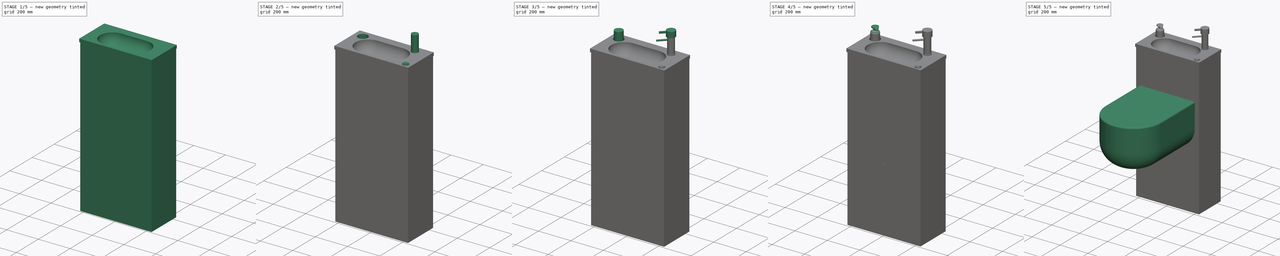
[diagram: build sequence overview — one tinted view per stage of 5, left to right]
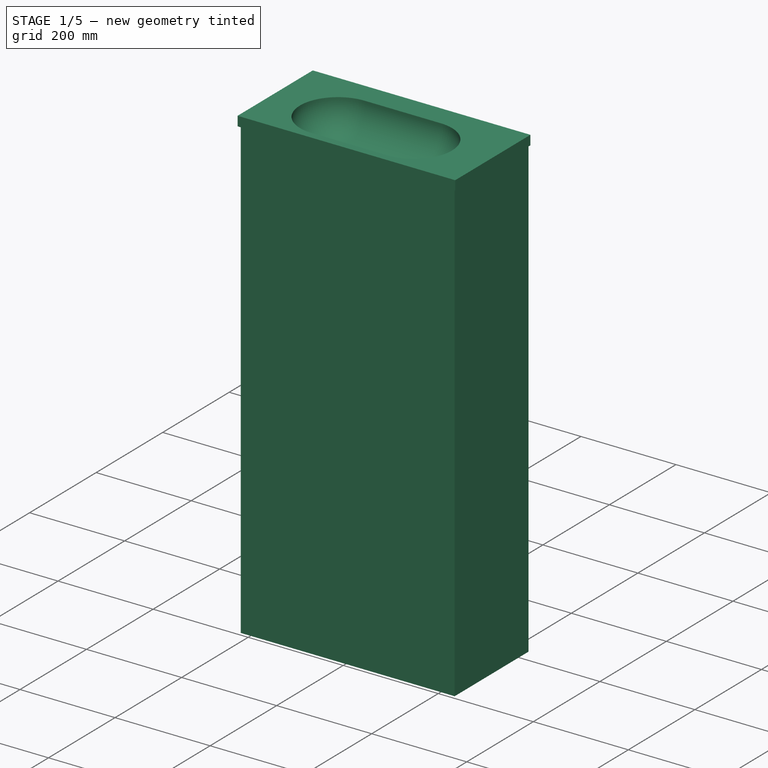
[diagram: stage 1 of 5 — iso view after this stage's code; geometry added in this stage tinted green]
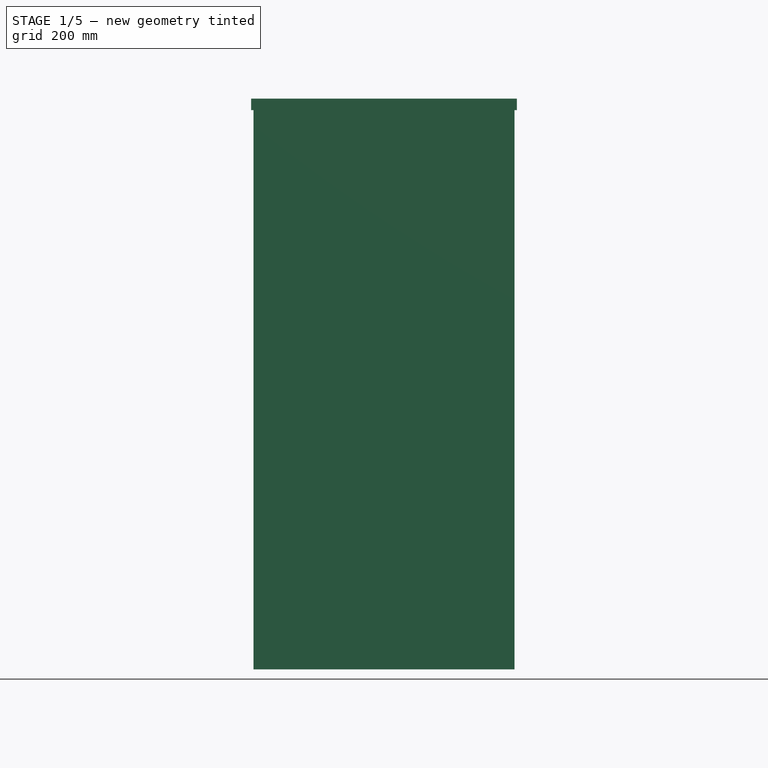
[diagram: stage 1 of 5 — front view after this stage's code; geometry added in this stage tinted green]
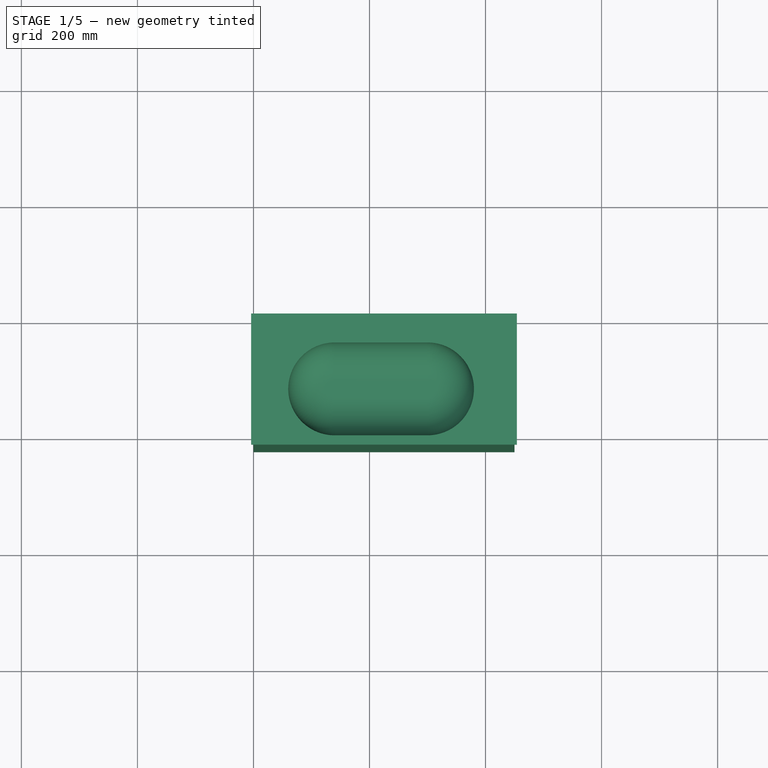
[diagram: stage 1 of 5 — top view after this stage's code; geometry added in this stage tinted green]
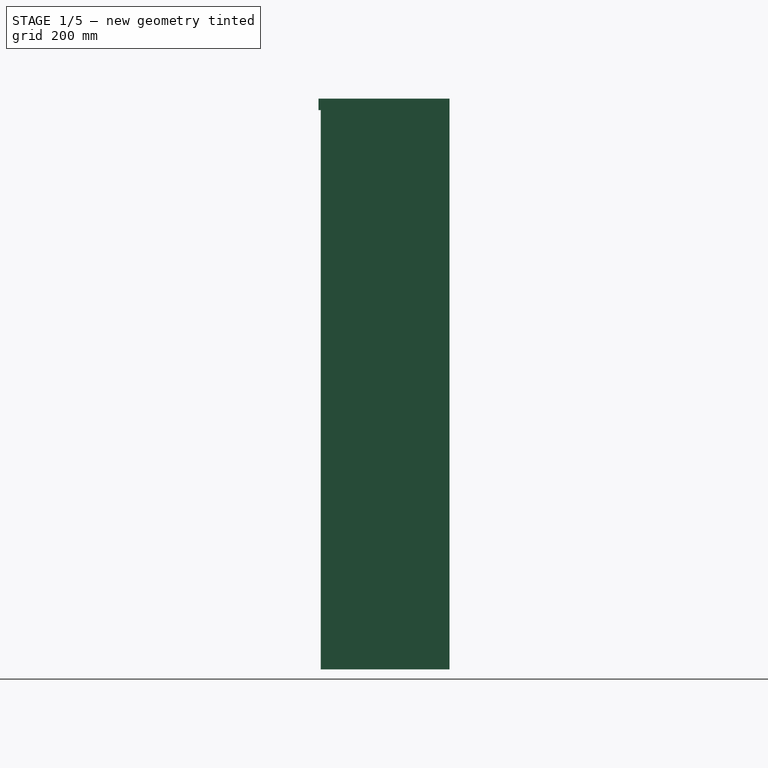
[diagram: stage 1 of 5 — right view after this stage's code; geometry added in this stage tinted green]
FCSTD DOCUMENT  (FreeCAD 0.18R16093 (Git))
Label: Wall-Hung-Toilets
License: All rights reserved
LicenseURL: http://en.wikipedia.org/wiki/All_rights_reserved
objects: Sketcher::SketchObject×18, PartDesign::Pad×15, PartDesign::Fillet×4, PartDesign::Pocket×3, PartDesign::Body×1
note: 59 computed .brp shape members not serialized (recipe doc carries the construction recipe); baked Part::Feature solids carry a one-line shape summary decoded from their .brp

FEATURE [Sketcher::SketchObject] Sketch
  MapMode = 5
  Support = -> [XY_Plane]
  sketch-geometry (4):
    g0: LineSegment StartX=0 StartY=0 StartZ=0 EndX=450 EndY=0 EndZ=0
    g1: LineSegment StartX=450 StartY=0 StartZ=0 EndX=450 EndY=-222 EndZ=0
    g2: LineSegment StartX=450 StartY=-222 StartZ=0 EndX=0 EndY=-222 EndZ=0
    g3: LineSegment StartX=0 StartY=-222 StartZ=0 EndX=0 EndY=0 EndZ=0
  constraints (11):
    c: Coincident(g0,g1)
    c: Coincident(g1,g2)
    c: Coincident(g2,g3)
    c: Coincident(g3,g0)
    c: Horizontal(g2)
    c: Vertical(g1)
    c: DistanceX(g0,g0) = 450
    c: DistanceY(g2,g0) = 222
    c: Vertical(g3)
    c: Coincident(g0,g-1)
    c: Horizontal(g0)
FEATURE [PartDesign::Pad] Pad
  Length = 964
  Length2 = 100
  Profile = -> Sketch
  Type = 0
FEATURE [Sketcher::SketchObject] Sketch001
  MapMode = 5
  Placement = pos=(0,0,964) rot=(0,0,1;0rad)
  Support = -> [Pad]
  sketch-geometry (4):
    g0: LineSegment StartX=-4 StartY=0 StartZ=0 EndX=454 EndY=0 EndZ=0
    g1: LineSegment StartX=454 StartY=0 StartZ=0 EndX=454 EndY=-226 EndZ=0
    g2: LineSegment StartX=454 StartY=-226 StartZ=0 EndX=-4 EndY=-226 EndZ=0
    g3: LineSegment StartX=-4 StartY=-226 StartZ=0 EndX=-4 EndY=0 EndZ=0
  constraints (12):
    c: Coincident(g0,g1)
    c: Coincident(g1,g2)
    c: Coincident(g2,g3)
    c: Coincident(g3,g0)
    c: Horizontal(g0)
    c: Horizontal(g2)
    c: Vertical(g1)
    c: Vertical(g3)
    c: DistanceY(g2,g-1) = 226
    c: PointOnObject(g0,g-1)
    c: DistanceX(g2,g1) = 458
    c: DistanceX(g0,g-1) = 4
FEATURE [PartDesign::Pad] Pad001
  BaseFeature = -> Pad
  Length = 20
  Length2 = 100
  Profile = -> Sketch001
  Type = 0
FEATURE [Sketcher::SketchObject] Sketch002
  MapMode = 5
  Placement = pos=(0,0,984) rot=(0,0,1;0rad)
  Support = -> [Pad001]
  sketch-geometry (4):
    g0: ArcOfCircle CenterX=140 CenterY=-130 CenterZ=0 NormalX=0 NormalY=0 NormalZ=1 AngleXU=0 Radius=80 StartAngle=1.5708 EndAngle=4.71239
    g1: ArcOfCircle CenterX=300 CenterY=-130 CenterZ=0 NormalX=0 NormalY=0 NormalZ=1 AngleXU=0 Radius=80 StartAngle=4.71239 EndAngle=7.85398
    g2: LineSegment StartX=140 StartY=-210 StartZ=0 EndX=300 EndY=-210 EndZ=0
    g3: LineSegment StartX=140 StartY=-50 StartZ=0 EndX=300 EndY=-50 EndZ=0
  constraints (10):
    c: Tangent(g0,g3) = 1.5708
    c: Tangent(g0,g2) = -1.5708
    c: Tangent(g2,g1) = -1.5708
    c: Tangent(g3,g1) = 1.5708
    c: Horizontal(g2)
    c: Equal(g0,g1)
    c: Radius(g1) = 80
    c: DistanceX(g0,g1) = 160
    c: DistanceX(g-1,g0) = 140
    c: DistanceY(g0,g-1) = 130
FEATURE [PartDesign::Pocket] Pocket
  BaseFeature = -> Pad001
  Length = 70
  Length2 = 100
  Profile = -> Sketch002
  Type = 0
FEATURE [PartDesign::Fillet] Fillet
  Base = -> Pocket [Edge32]
  BaseFeature = -> Pocket
  Radius = 65
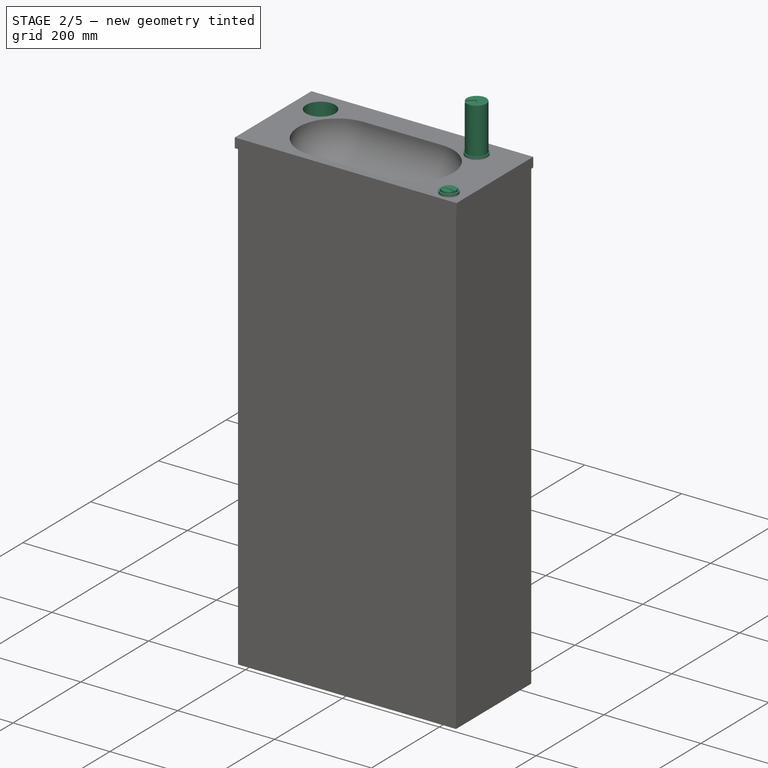
[diagram: stage 2 of 5 — iso view after this stage's code; geometry added in this stage tinted green]
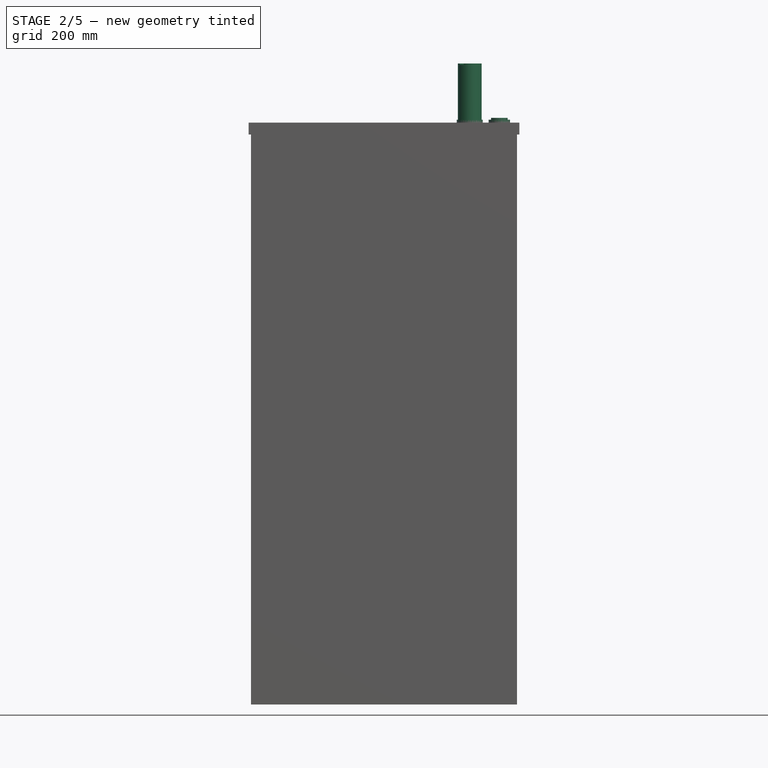
[diagram: stage 2 of 5 — front view after this stage's code; geometry added in this stage tinted green]
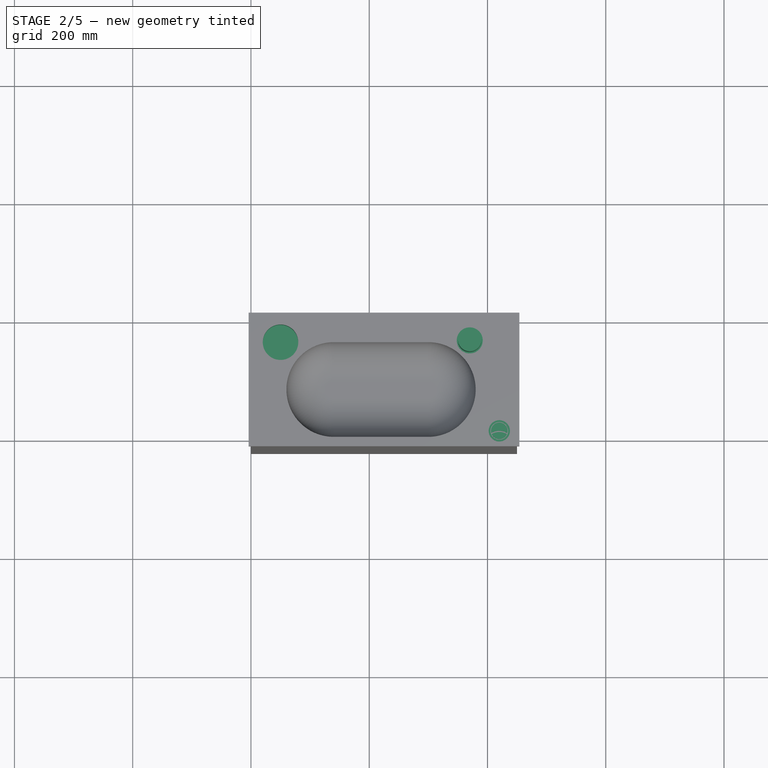
[diagram: stage 2 of 5 — top view after this stage's code; geometry added in this stage tinted green]
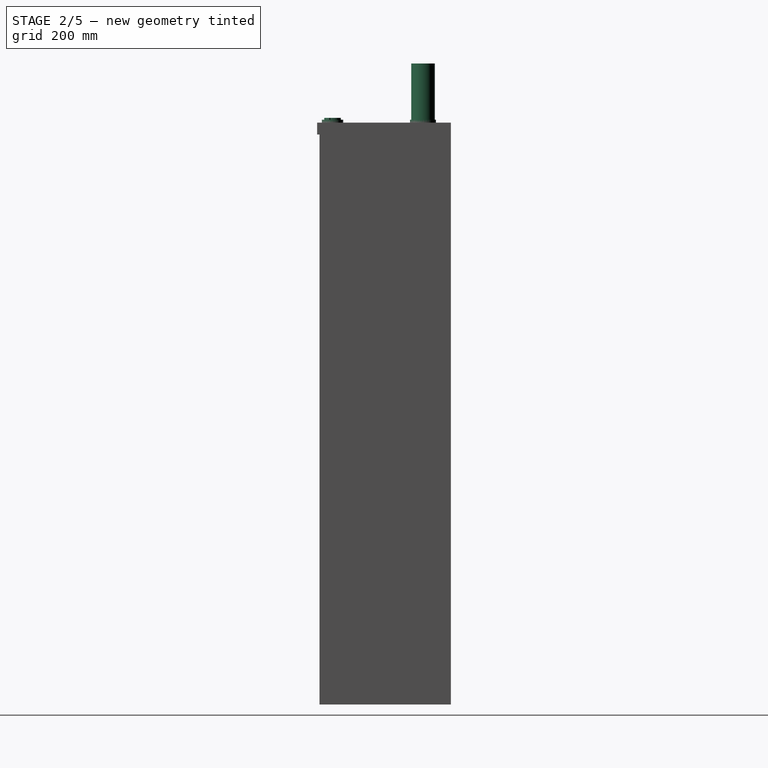
[diagram: stage 2 of 5 — right view after this stage's code; geometry added in this stage tinted green]
FEATURE [Sketcher::SketchObject] Sketch003
  MapMode = 5
  Placement = pos=(0,0,984) rot=(0,0,1;0rad)
  Support = -> [Fillet]
  sketch-geometry (1):
    g0: Circle CenterX=50 CenterY=-50 CenterZ=0 NormalX=0 NormalY=0 NormalZ=1 AngleXU=0 Radius=30
  constraints (3):
    c: Radius(g0) = 30
    c: DistanceX(g-1,g0) = 50
    c: DistanceY(g0,g-1) = 50
FEATURE [PartDesign::Pocket] Pocket001
  BaseFeature = -> Fillet
  Length = 50
  Length2 = 100
  Profile = -> Sketch003
  Type = 0
FEATURE [Sketcher::SketchObject] Sketch004
  MapMode = 5
  Placement = pos=(0,0,984) rot=(0,0,1;0rad)
  Support = -> [Pocket001]
  sketch-geometry (4):
    g0: Circle CenterX=370 CenterY=-47 CenterZ=0 NormalX=0 NormalY=0 NormalZ=1 AngleXU=0 Radius=20
    g1: Circle CenterX=420 CenterY=-200 CenterZ=0 NormalX=0 NormalY=0 NormalZ=1 AngleXU=0 Radius=15
    g2: Circle CenterX=420 CenterY=-200 CenterZ=0 NormalX=0 NormalY=0 NormalZ=1 AngleXU=0 Radius=18
    g3: Circle CenterX=370 CenterY=-47 CenterZ=0 NormalX=0 NormalY=0 NormalZ=1 AngleXU=0 Radius=22
  constraints (10):
    c: Coincident(g2,g1)
    c: Coincident(g3,g0)
    c: Radius(g3) = 22
    c: Radius(g0) = 20
    c: DistanceX(g-1,g0) = 370
    c: DistanceY(g0,g-1) = 47
    c: Radius(g1) = 15
    c: Radius(g2) = 18
    c: DistanceX(g-1,g1) = 420
    c: DistanceY(g1,g-1) = 200
FEATURE [PartDesign::Pad] Pad002
  BaseFeature = -> Pocket001
  Length = 5
  Length2 = 100
  Profile = -> Sketch004
  Type = 0
FEATURE [Sketcher::SketchObject] Sketch005
  MapMode = 5
  Placement = pos=(0,0,984) rot=(0,0,1;0rad)
  Support = -> [Pad002]
  sketch-geometry (5):
    g0: ArcOfCircle CenterX=420 CenterY=-200 CenterZ=0 NormalX=0 NormalY=0 NormalZ=1 AngleXU=0 Radius=14 StartAngle=6.01059 EndAngle=9.69737
    g1: ArcOfCircle CenterX=420 CenterY=-200 CenterZ=0 NormalX=0 NormalY=0 NormalZ=1 AngleXU=0 Radius=14 StartAngle=3.53979 EndAngle=5.88499
    g2: ArcOfCircle CenterX=420 CenterY=-226 CenterZ=0 NormalX=0 NormalY=0 NormalZ=1 AngleXU=0 Radius=26 StartAngle=1.02561 EndAngle=2.11598
    g3: LineSegment [constr] StartX=420 StartY=-127.444 StartZ=0 EndX=420 EndY=-266.253 EndZ=0
    g4: ArcOfCircle CenterX=420 CenterY=-228 CenterZ=0 NormalX=0 NormalY=0 NormalZ=1 AngleXU=0 Radius=26 StartAngle=1.05143 EndAngle=2.09017
  constraints (17):
    c: Coincident(g1,g0)
    c: DistanceX(g-1,g0) = 420
    c: DistanceY(g0,g-1) = 200
    c: Radius(g0) = 14
    c: Equal(g0,g1)
    c: Coincident(g2,g0)
    c: Vertical(g3)
    c: PointOnObject(g0,g3)
    c: PointOnObject(g2,g3)
    c: Coincident(g2,g0)
    c: PointOnObject(g4,g3)
    c: Coincident(g4,g1)
    c: Coincident(g4,g1)
    c: Radius(g4) = 26
    c: Equal(g2,g4)
    c: DistanceY(g4,g2) = 2
    c: DistanceY(g2,g0) = 26
FEATURE [PartDesign::Pad] Pad003
  BaseFeature = -> Pad002
  Length = 8
  Length2 = 100
  Profile = -> Sketch005
  Type = 0
FEATURE [Sketcher::SketchObject] Sketch006
  MapMode = 5
  Placement = pos=(0,0,984) rot=(0,0,1;0rad)
  Support = -> [Pad003]
  sketch-geometry (1):
    g0: Circle CenterX=370 CenterY=-47 CenterZ=0 NormalX=0 NormalY=0 NormalZ=1 AngleXU=0 Radius=20
  constraints (3):
    c: DistanceX(g-1,g0) = 370
    c: DistanceY(g0,g-1) = 47
    c: Radius(g0) = 20
FEATURE [PartDesign::Pad] Pad004
  BaseFeature = -> Pad003
  Length = 100
  Length2 = 100
  Profile = -> Sketch006
  Type = 0
FEATURE [Sketcher::SketchObject] Sketch007
  MapMode = 5
  Placement = pos=(0,0,1084) rot=(0,0,1;0rad)
  Support = -> [Pad004]
  sketch-geometry (8):
    g0: LineSegment [constr] StartX=294.657 StartY=-85.0668 StartZ=0 EndX=294.657 EndY=-85.0668 EndZ=0
    g1: GeomPoint X=370 Y=-47 Z=0
    g2: LineSegment [constr] StartX=370 StartY=25.2941 StartZ=0 EndX=370 EndY=-145.323 EndZ=0
    g3: LineSegment [constr] StartX=409.713 StartY=-7.28674 StartZ=0 EndX=309.204 EndY=-107.796 EndZ=0
    g4: LineSegment StartX=348.787 StartY=-61.1421 StartZ=0 EndX=366.464 EndY=-43.4645 EndZ=0
    g5: LineSegment StartX=355.858 StartY=-68.2132 StartZ=0 EndX=373.536 EndY=-50.5355 EndZ=0
    g6: LineSegment StartX=348.787 StartY=-61.1421 StartZ=0 EndX=355.858 EndY=-68.2132 EndZ=0
    g7: LineSegment StartX=366.464 StartY=-43.4645 StartZ=0 EndX=373.536 EndY=-50.5355 EndZ=0
  constraints (18):
    c: DistanceX(g-1,g1) = 370
    c: DistanceY(g1,g-1) = 47
    c: Vertical(g2)
    c: PointOnObject(g1,g2)
    c: PointOnObject(g1,g3)
    c: Angle(g3,g2) = 0.785398
    c: Parallel(g4,g3)
    c: Coincident(g6,g4)
    c: Coincident(g6,g5)
    c: Perpendicular(g4,g6)
    c: Coincident(g7,g4)
    c: Coincident(g7,g5)
    c: Perpendicular(g7,g4)
    c: Equal(g6,g7)
    c: PointOnObject(g1,g7)
    c: Distance(g4,g1) = 5
    c: Distance(g5,g5) = 25
    c: Distance(g4,g5) = 10
FEATURE [PartDesign::Pocket] Pocket002
  BaseFeature = -> Pad004
  Length = 2
  Length2 = 100
  Profile = -> Sketch007
  Type = 0
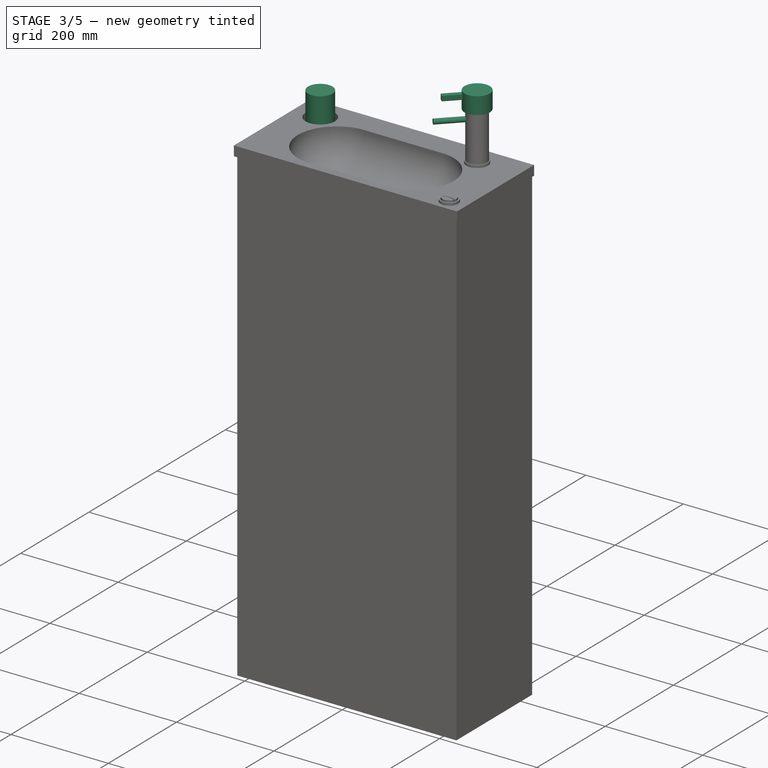
[diagram: stage 3 of 5 — iso view after this stage's code; geometry added in this stage tinted green]
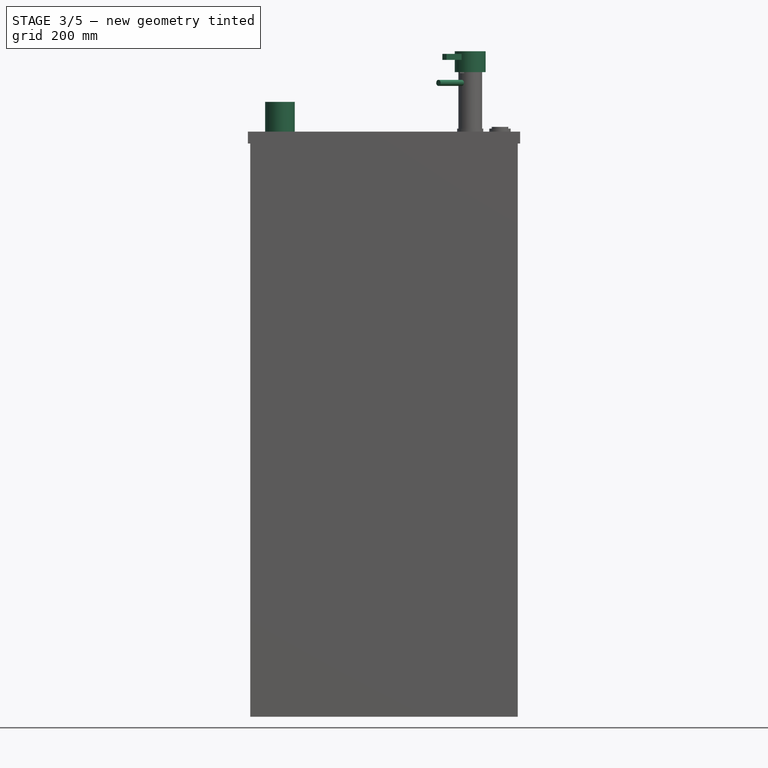
[diagram: stage 3 of 5 — front view after this stage's code; geometry added in this stage tinted green]
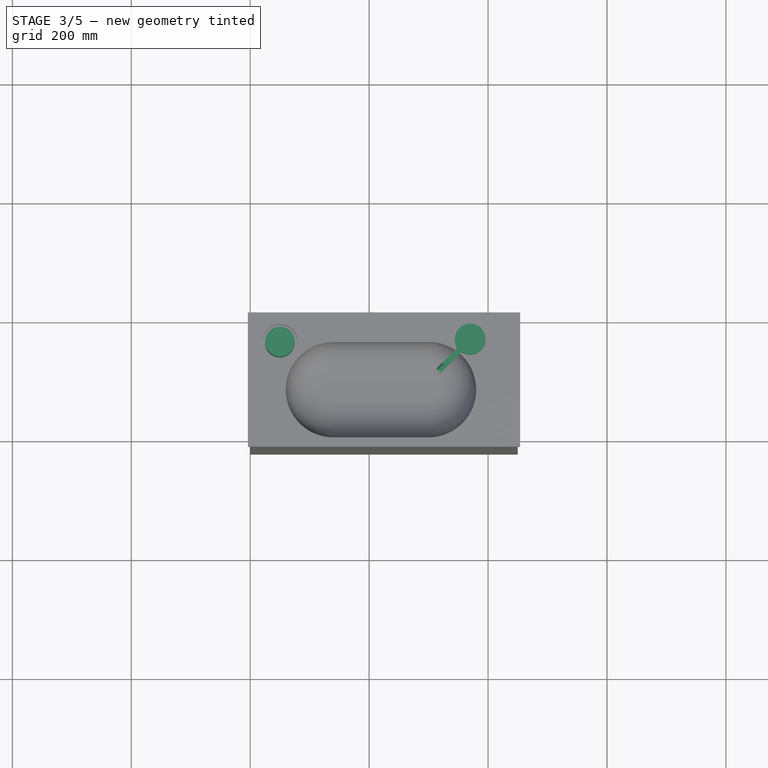
[diagram: stage 3 of 5 — top view after this stage's code; geometry added in this stage tinted green]
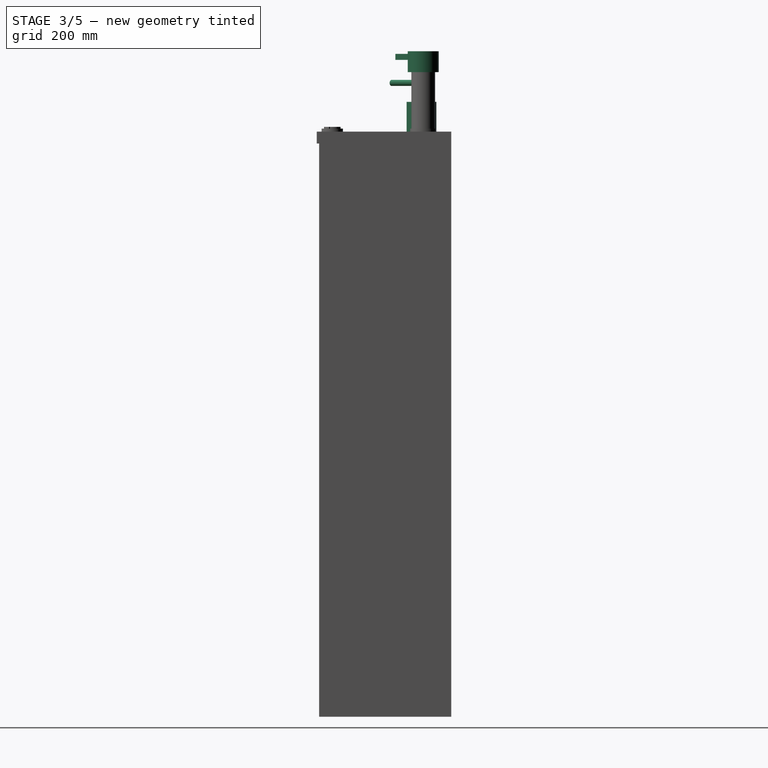
[diagram: stage 3 of 5 — right view after this stage's code; geometry added in this stage tinted green]
FEATURE [Sketcher::SketchObject] Sketch008
  MapMode = 5
  Placement = pos=(204.964,-204.964,0) rot=(0.862856,0.357407,0.357407;1.71777rad)
  Support = -> [Pocket002]
  sketch-geometry (6):
    g0: LineSegment StartX=227.081 StartY=1080.06 StartZ=0 EndX=227.081 EndY=1114.66 EndZ=0
    g1: LineSegment StartX=227.081 StartY=1114.66 StartZ=0 EndX=167.081 EndY=1114.66 EndZ=0
    g2: LineSegment StartX=167.081 StartY=1114.66 StartZ=0 EndX=167.081 EndY=1104.66 EndZ=0
    g3: LineSegment StartX=167.081 StartY=1104.66 StartZ=0 EndX=223.137 EndY=1104.66 EndZ=0
    g4: LineSegment StartX=223.137 StartY=1104.66 StartZ=0 EndX=223.137 EndY=1079.5 EndZ=0
    g5: LineSegment StartX=223.137 StartY=1079.5 StartZ=0 EndX=227.081 EndY=1080.06 EndZ=0
  constraints (13):
    c: Vertical(g0)
    c: Coincident(g0,g1)
    c: Coincident(g1,g2)
    c: Vertical(g2)
    c: Coincident(g2,g3)
    c: Horizontal(g3)
    c: Coincident(g3,g4)
    c: Vertical(g4)
    c: Coincident(g4,g5)
    c: Coincident(g5,g0)
    c: Horizontal(g1)
    c: DistanceY(g2,g1) = 10
    c: DistanceX(g1,g0) = 60
FEATURE [PartDesign::Pad] Pad005
  BaseFeature = -> Pocket002
  Length = 10
  Length2 = 100
  Profile = -> Sketch008
  Type = 0
FEATURE [Sketcher::SketchObject] Sketch009
  MapMode = 5
  Placement = pos=(157.782,157.782,0) rot=(0.862856,-0.357407,-0.357407;1.71777rad)
  Support = -> [Pad005]
  sketch-geometry (1):
    g0: Circle CenterX=294.464 CenterY=1065.9 CenterZ=0 NormalX=0 NormalY=0 NormalZ=1 AngleXU=0 Radius=5.13798
FEATURE [PartDesign::Pad] Pad006
  BaseFeature = -> Pad005
  Length = 70
  Length2 = 100
  Profile = -> Sketch009
  Type = 0
FEATURE [Sketcher::SketchObject] Sketch010
  MapMode = 5
  Placement = pos=(0,0,1084) rot=(0,0,1;0rad)
  Support = -> [Pad006]
  sketch-geometry (1):
    g0: Circle CenterX=370 CenterY=-47 CenterZ=0 NormalX=0 NormalY=0 NormalZ=1 AngleXU=0 Radius=26
  constraints (3):
    c: DistanceX(g-1,g0) = 370
    c: DistanceY(g0,g-1) = 47
    c: Radius(g0) = 26
FEATURE [PartDesign::Pad] Pad007
  BaseFeature = -> Pad006
  Length = 35
  Length2 = 100
  Profile = -> Sketch010
  Type = 0
FEATURE [Sketcher::SketchObject] Sketch011
  MapMode = 5
  Placement = pos=(0,0,934) rot=(0,0,1;0rad)
  Support = -> [Pad007]
  sketch-geometry (1):
    g0: Circle CenterX=50 CenterY=-50 CenterZ=0 NormalX=0 NormalY=0 NormalZ=1 AngleXU=0 Radius=25
  constraints (3):
    c: DistanceX(g-1,g0) = 50
    c: DistanceY(g0,g-1) = 50
    c: Radius(g0) = 25
FEATURE [PartDesign::Pad] Pad008
  BaseFeature = -> Pad007
  Length = 100
  Length2 = 100
  Profile = -> Sketch011
  Type = 0
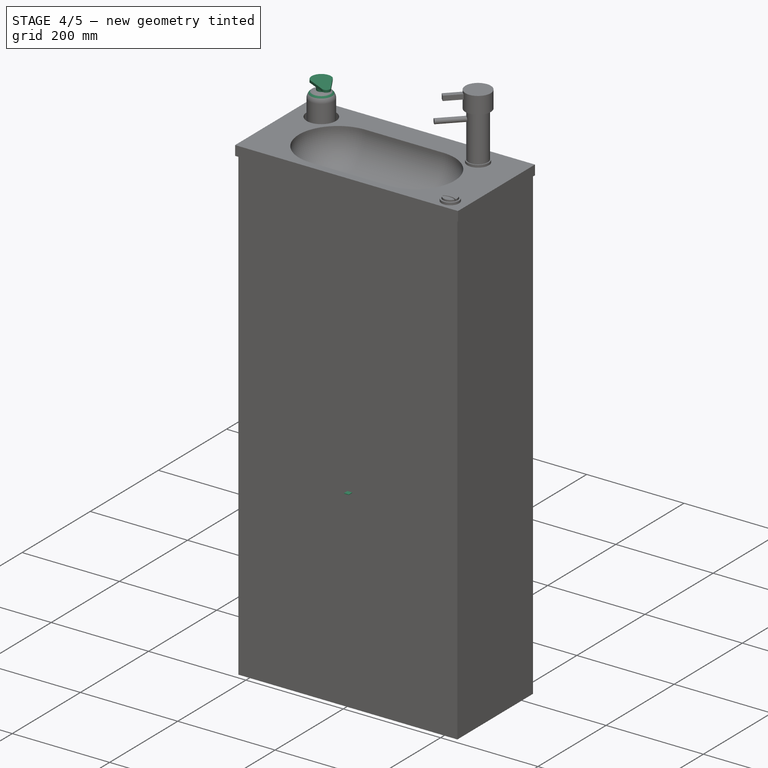
[diagram: stage 4 of 5 — iso view after this stage's code; geometry added in this stage tinted green]
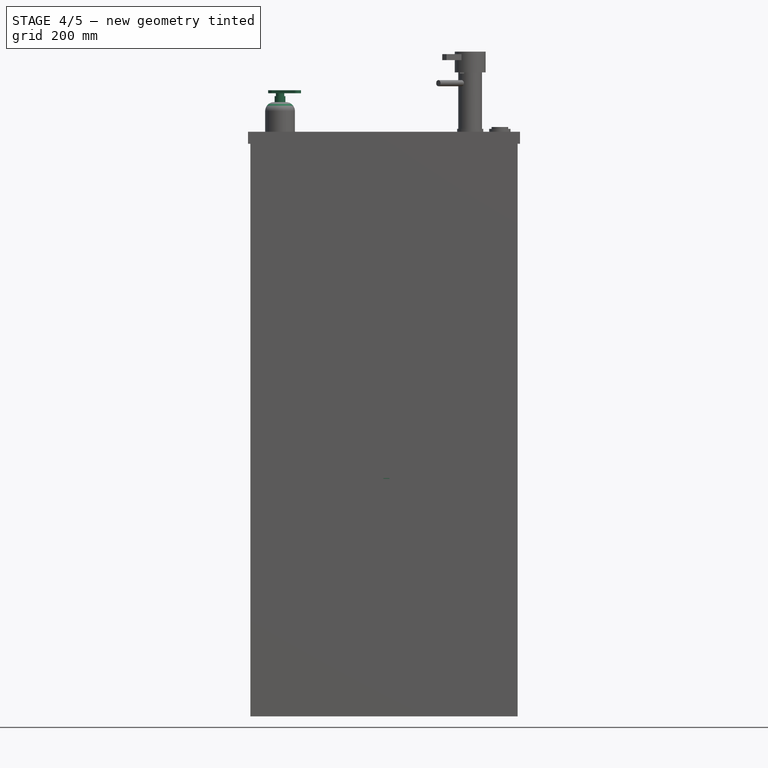
[diagram: stage 4 of 5 — front view after this stage's code; geometry added in this stage tinted green]
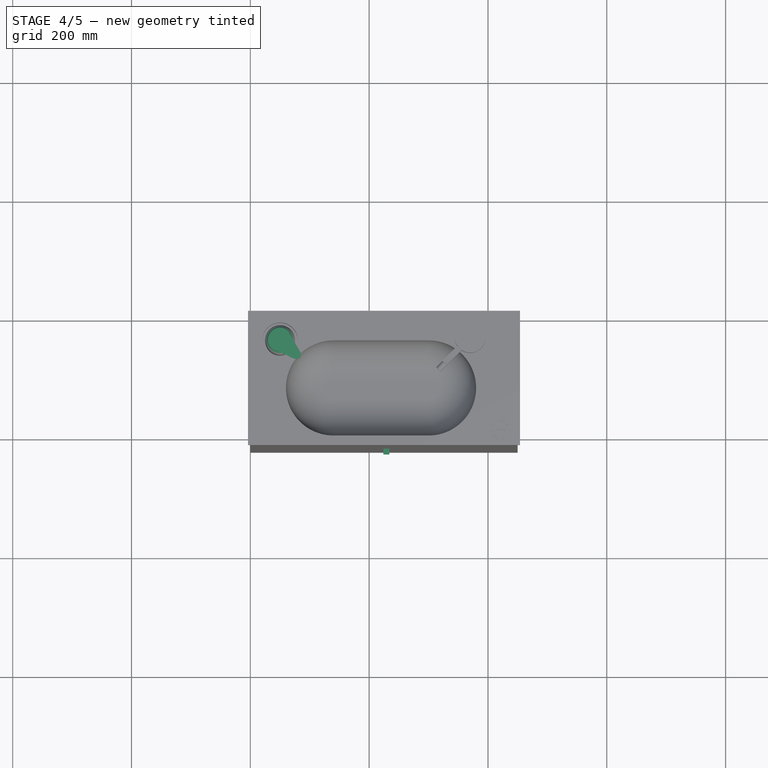
[diagram: stage 4 of 5 — top view after this stage's code; geometry added in this stage tinted green]
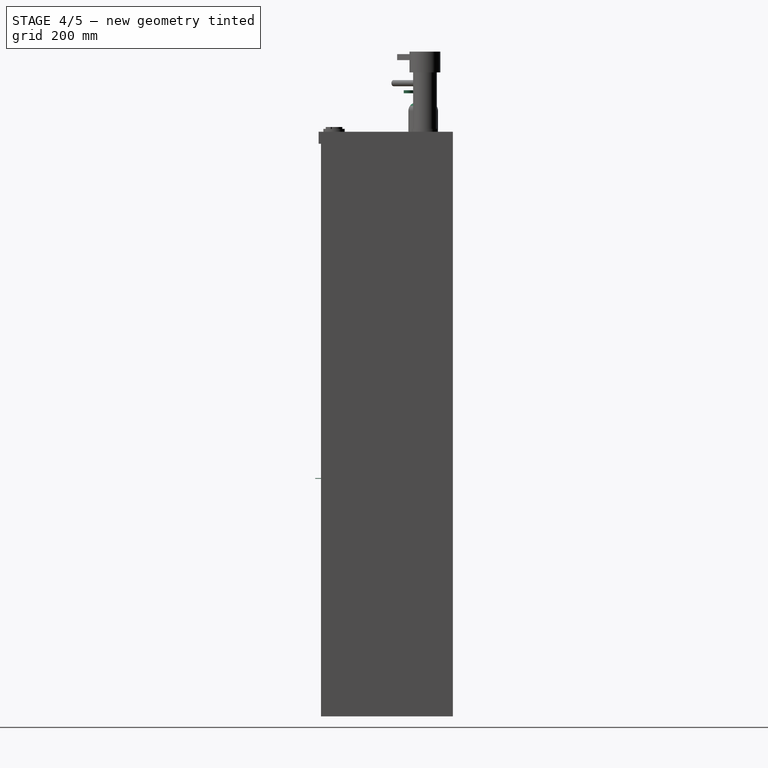
[diagram: stage 4 of 5 — right view after this stage's code; geometry added in this stage tinted green]
FEATURE [PartDesign::Fillet] Fillet001
  Base = -> Pad008 [Edge66]
  BaseFeature = -> Pad008
  Radius = 15
FEATURE [Sketcher::SketchObject] Sketch012
  MapMode = 5
  Placement = pos=(0,0,1034) rot=(0,0,1;0rad)
  Support = -> [Fillet001]
  sketch-geometry (1):
    g0: Circle CenterX=50 CenterY=-50 CenterZ=0 NormalX=0 NormalY=0 NormalZ=1 AngleXU=0 Radius=9
  constraints (3):
    c: DistanceX(g-1,g0) = 50
    c: DistanceY(g0,g-1) = 50
    c: Radius(g0) = 9
FEATURE [PartDesign::Pad] Pad009
  BaseFeature = -> Fillet001
  Length = 10
  Length2 = 100
  Profile = -> Sketch012
  Type = 0
FEATURE [Sketcher::SketchObject] Sketch013
  MapMode = 5
  Placement = pos=(0,0,1044) rot=(0,0,1;0rad)
  Support = -> [Pad009]
  sketch-geometry (1):
    g0: Circle CenterX=50 CenterY=-50 CenterZ=0 NormalX=0 NormalY=0 NormalZ=1 AngleXU=0 Radius=7
  constraints (3):
    c: DistanceX(g-1,g0) = 50
    c: DistanceY(g0,g-1) = 50
    c: Radius(g0) = 7
FEATURE [PartDesign::Pad] Pad010
  BaseFeature = -> Pad009
  Length = 5
  Length2 = 100
  Profile = -> Sketch013
  Type = 0
FEATURE [Sketcher::SketchObject] Sketch014
  MapMode = 5
  Placement = pos=(0,0,1049) rot=(0,0,1;0rad)
  Support = -> [Pad010]
  sketch-geometry (4):
    g0: ArcOfCircle CenterX=50 CenterY=-50 CenterZ=0 NormalX=0 NormalY=0 NormalZ=1 AngleXU=0 Radius=20 StartAngle=0.875795 EndAngle=3.92721
    g1: ArcOfCircle CenterX=77.2892 CenterY=-74.705 CenterZ=0 NormalX=0 NormalY=0 NormalZ=1 AngleXU=0 Radius=8 StartAngle=4.40291 EndAngle=6.67131
    g2: LineSegment StartX=35.8609 StartY=-64.1452 StartZ=0 EndX=74.8527 EndY=-82.3249 EndZ=0
    g3: LineSegment StartX=62.8077 StartY=-34.6389 StartZ=0 EndX=84.6942 EndY=-71.6774 EndZ=0
  constraints (9):
    c: DistanceX(g-1,g0) = 50
    c: DistanceY(g0,g-1) = 50
    c: Radius(g0) = 20
    c: Coincident(g2,g0)
    c: Coincident(g2,g1)
    c: Coincident(g3,g0)
    c: Coincident(g3,g1)
    c: Equal(g2,g3)
    c: Radius(g1) = 8
FEATURE [PartDesign::Pad] Pad011
  BaseFeature = -> Pad010
  Length = 5
  Length2 = 100
  Profile = -> Sketch014
  Type = 0
FEATURE [Sketcher::SketchObject] Sketch015
  MapMode = 5
  Placement = pos=(0,-222,0) rot=(1,0,0;1.5708rad)
  Support = -> [Pad011]
  sketch-geometry (4):
    g0: LineSegment StartX=224 StartY=400 StartZ=0 EndX=234 EndY=400 EndZ=0
    g1: LineSegment StartX=234 StartY=400 StartZ=0 EndX=234 EndY=401 EndZ=0
    g2: LineSegment StartX=234 StartY=401 StartZ=0 EndX=224 EndY=401 EndZ=0
    g3: LineSegment StartX=224 StartY=401 StartZ=0 EndX=224 EndY=400 EndZ=0
  constraints (12):
    c: Coincident(g0,g1)
    c: Coincident(g1,g2)
    c: Coincident(g2,g3)
    c: Coincident(g3,g0)
    c: Horizontal(g0)
    c: Horizontal(g2)
    c: Vertical(g1)
    c: Vertical(g3)
    c: DistanceY(g-1,g0) = 400
    c: DistanceX(g2,g1) = 10
    c: DistanceX(g-1,g2) = 224
    c: DistanceY(g0,g1) = 1
FEATURE [PartDesign::Pad] Pad012
  BaseFeature = -> Pad011
  Length = 10
  Length2 = 100
  Profile = -> Sketch015
  Type = 0
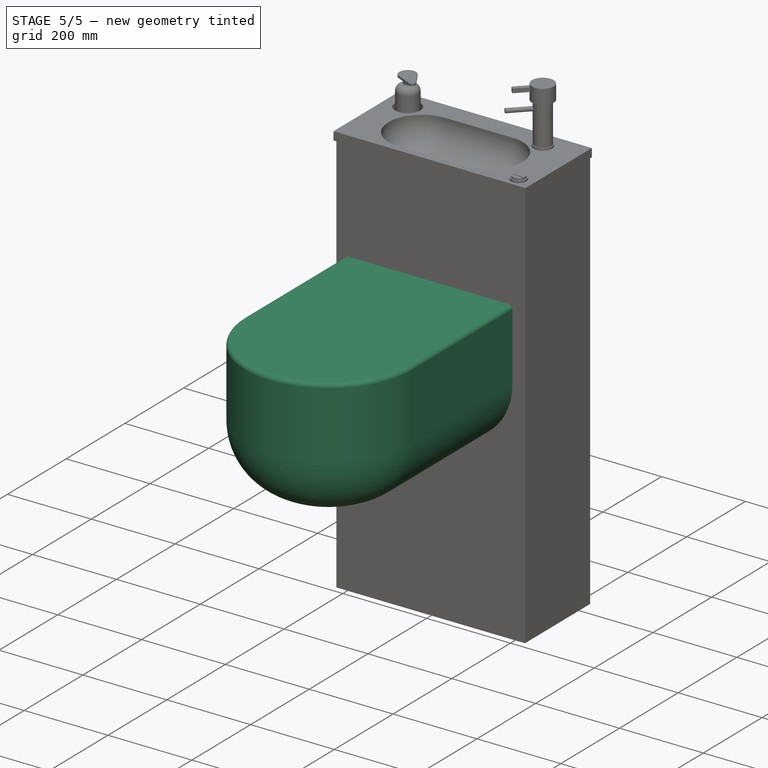
[diagram: stage 5 of 5 — iso view after this stage's code; geometry added in this stage tinted green]
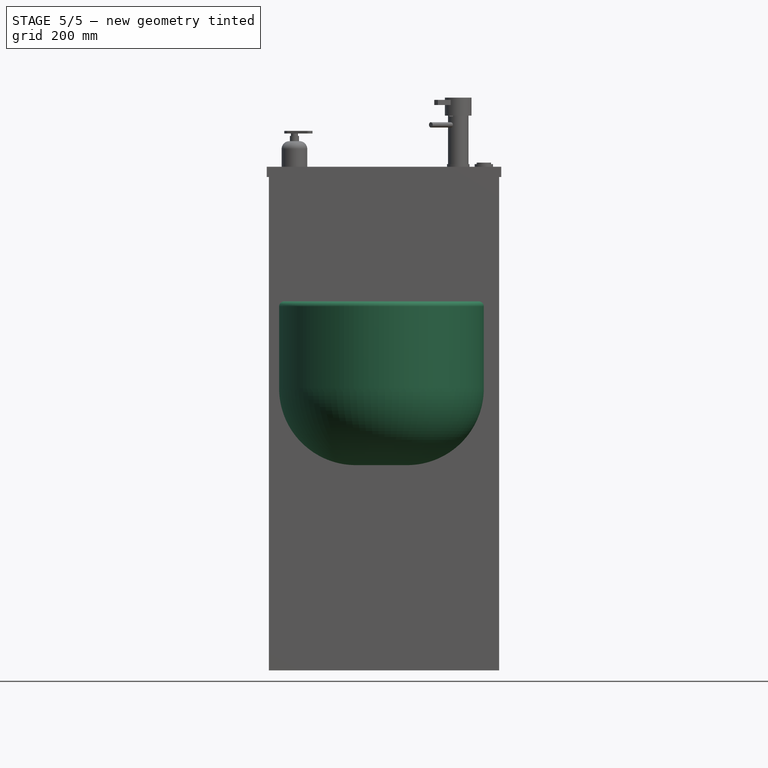
[diagram: stage 5 of 5 — front view after this stage's code; geometry added in this stage tinted green]
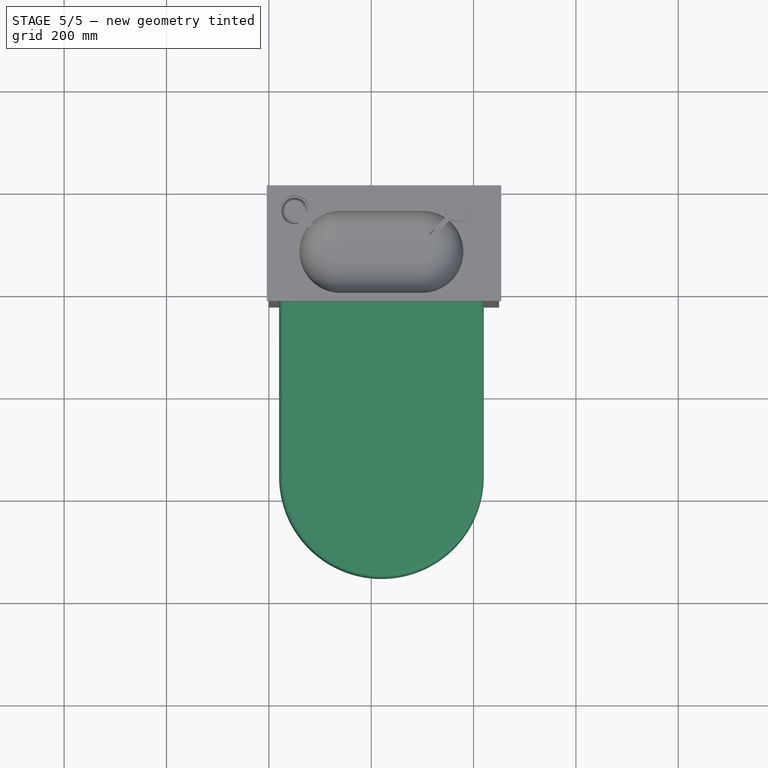
[diagram: stage 5 of 5 — top view after this stage's code; geometry added in this stage tinted green]
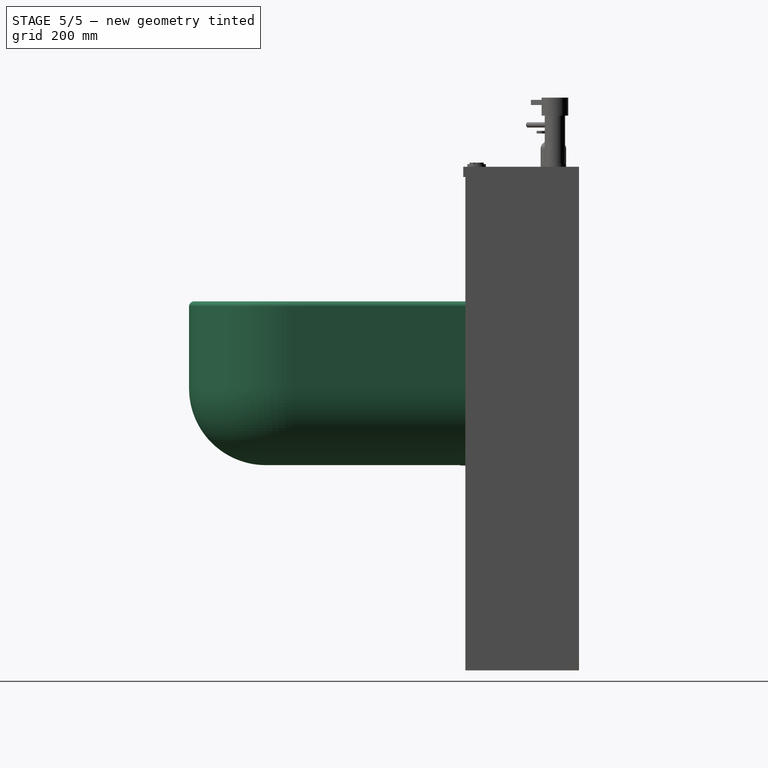
[diagram: stage 5 of 5 — right view after this stage's code; geometry added in this stage tinted green]
FEATURE [Sketcher::SketchObject] Sketch016
  MapMode = 5
  Placement = pos=(0,8.9e-14,401) rot=(0,0,1;0rad)
  Support = -> [Pad012]
  sketch-geometry (4):
    g0: LineSegment StartX=20 StartY=-222 StartZ=0 EndX=420 EndY=-222 EndZ=0
    g1: LineSegment StartX=20 StartY=-222 StartZ=0 EndX=20 EndY=-562 EndZ=0
    g2: LineSegment StartX=420 StartY=-222 StartZ=0 EndX=420 EndY=-562 EndZ=0
    g3: ArcOfCircle CenterX=220 CenterY=-562 CenterZ=0 NormalX=0 NormalY=0 NormalZ=1 AngleXU=0 Radius=200 StartAngle=3.14159 EndAngle=6.28319
  constraints (13):
    c: Horizontal(g0)
    c: Coincident(g1,g0)
    c: Vertical(g1)
    c: Vertical(g2)
    c: Coincident(g3,g2)
    c: Coincident(g2,g0)
    c: Coincident(g3,g1)
    c: Radius(g3) = 200
    c: Equal(g1,g2)
    c: DistanceY(g2,g0) = 340
    c: DistanceY(g0,g-1) = 222
    c: DistanceX(g-1,g0) = 20
    c: DistanceY(g3,g2) = 0
FEATURE [PartDesign::Pad] Pad013
  BaseFeature = -> Pad012
  Length = 300
  Length2 = 100
  Profile = -> Sketch016
  Type = 0
FEATURE [Sketcher::SketchObject] Sketch017
  MapMode = 5
  Placement = pos=(0,1.455e-13,701) rot=(0,0,1;0rad)
  Support = -> [Pad013]
  sketch-geometry (4):
    g0: LineSegment StartX=20 StartY=-222 StartZ=0 EndX=420 EndY=-222 EndZ=0
    g1: LineSegment StartX=420 StartY=-222 StartZ=0 EndX=420 EndY=-562 EndZ=0
    g2: LineSegment StartX=20 StartY=-222 StartZ=0 EndX=20 EndY=-562 EndZ=0
    g3: ArcOfCircle CenterX=220 CenterY=-562 CenterZ=0 NormalX=0 NormalY=0 NormalZ=1 AngleXU=0 Radius=200 StartAngle=3.14159 EndAngle=6.28319
  constraints (13):
    c: Horizontal(g0)
    c: Coincident(g1,g0)
    c: Vertical(g1)
    c: Coincident(g2,g0)
    c: Vertical(g2)
    c: Equal(g2,g1)
    c: Coincident(g3,g2)
    c: Coincident(g3,g1)
    c: DistanceY(g2,g0) = 340
    c: DistanceY(g0,g-1) = 222
    c: Radius(g3) = 200
    c: DistanceX(g-1,g0) = 20
    c: DistanceY(g1,g3) = 0
FEATURE [PartDesign::Pad] Pad014
  BaseFeature = -> Pad013
  Length = 20
  Length2 = 100
  Profile = -> Sketch017
  Type = 0
FEATURE [PartDesign::Fillet] Fillet002
  Base = -> Pad014 [Edge114]
  BaseFeature = -> Pad014
  Radius = 10
FEATURE [PartDesign::Fillet] Fillet003
  Base = -> Fillet002 [Edge27]
  BaseFeature = -> Fillet002
  Radius = 150
FEATURE [PartDesign::Body] Body
  Group = -> [Sketch,Pad,Sketch001,Pad001,Sketch002,Pocket,Fillet,Sketch003,Pocket001,Sketch004,Pad002,Sketch005,Pad003,Sketch006,Pad004,Sketch007,Pocket002,Sketch008,Pad005,Sketch009,Pad006,Sketch010,Pad007,Sketch011,Pad008,Fillet001,Sketch012,Pad009,Sketch013,Pad010,Sketch014,Pad011,Sketch015,Pad012,Sketch016,Pad013,Sketch017,Pad014,Fillet002,Fillet003]
  Origin = -> Origin
  Tip = -> Fillet003
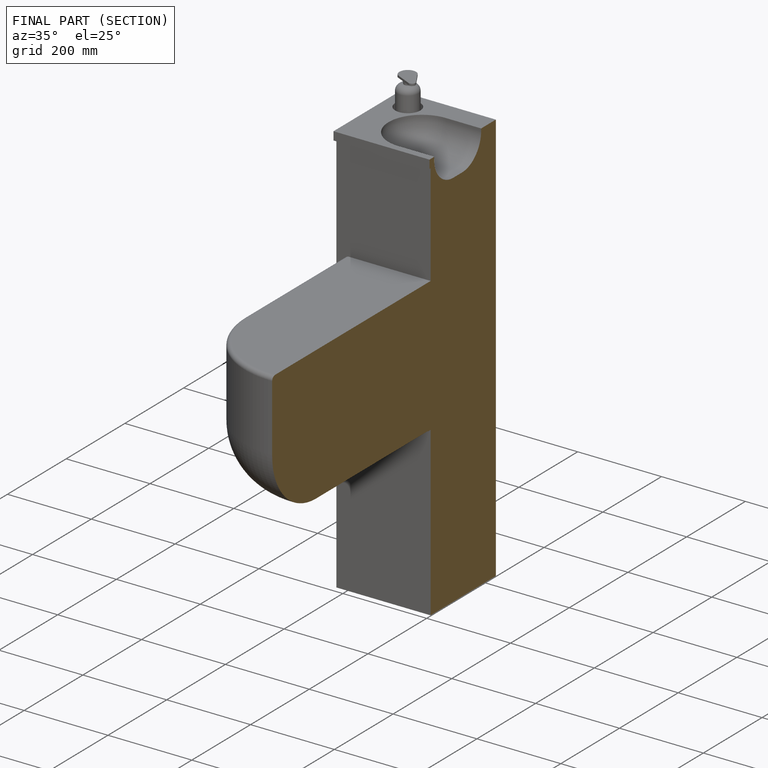
[diagram: finished part — half-section view (interior)]
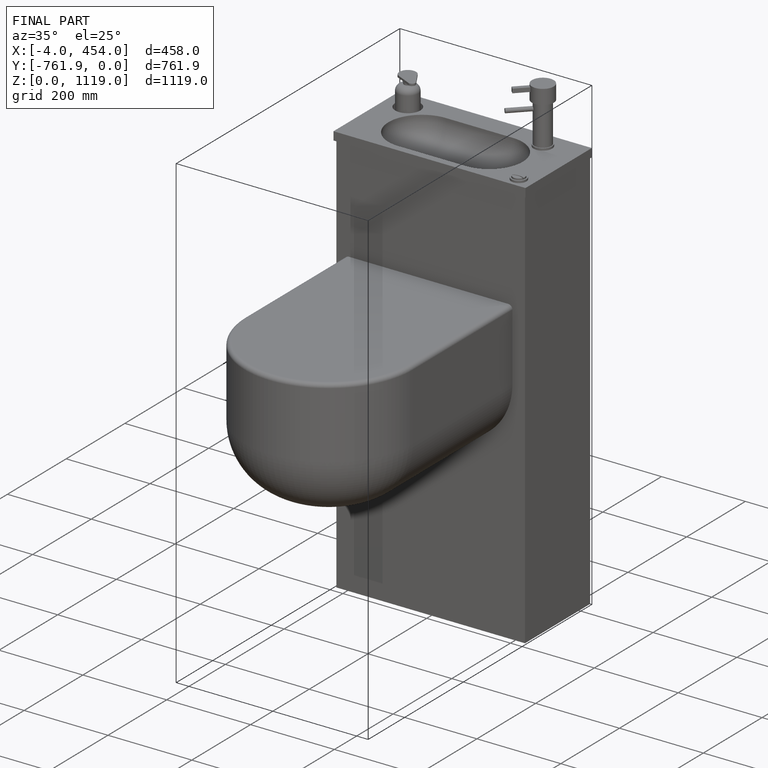
[diagram: finished part — iso view with bounding-box wireframe]
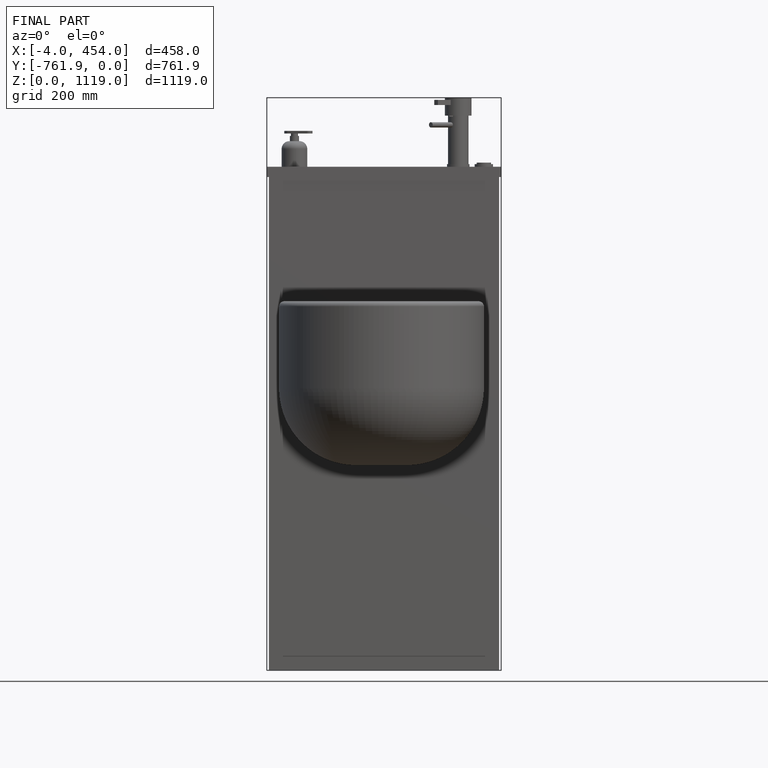
[diagram: finished part — front view with bounding-box wireframe]
